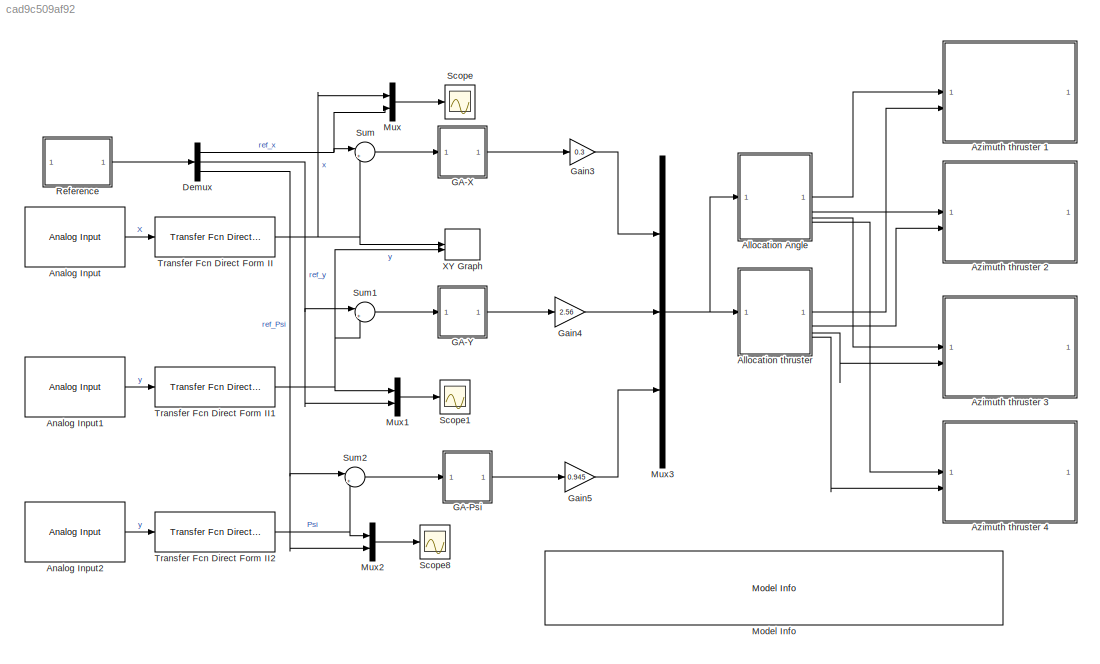
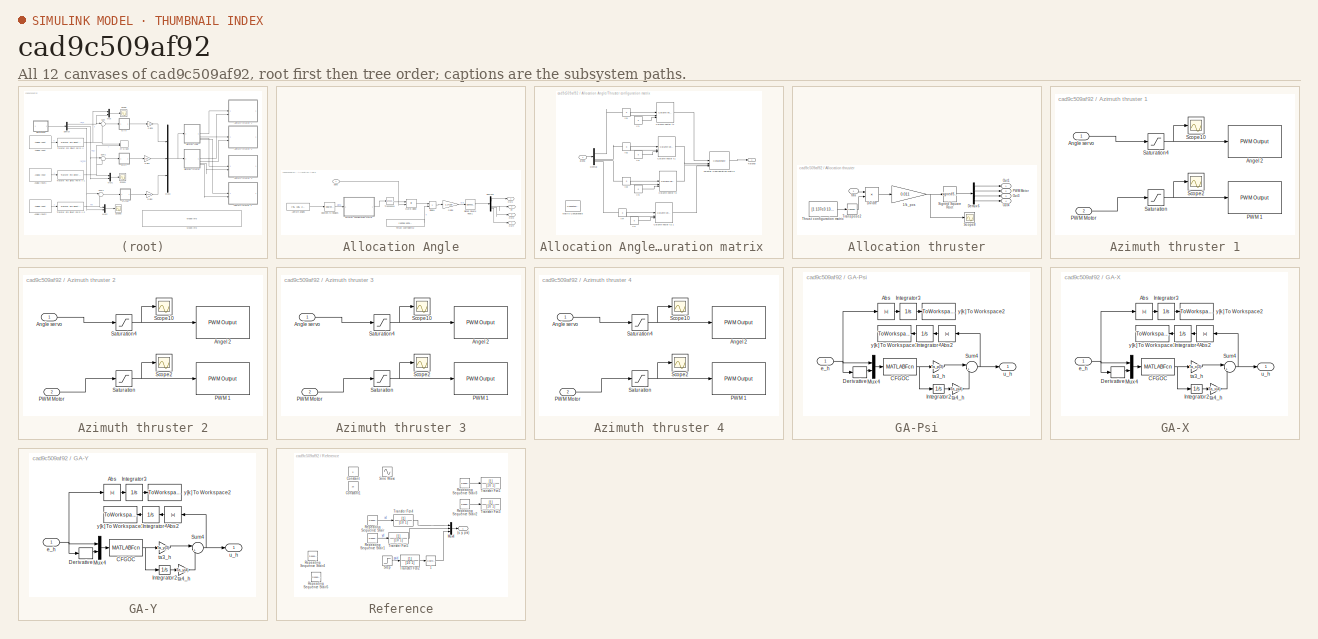
[diagram: thumbnail index - all 12 canvases of the model, root first then tree order]
MODEL slx_cad9c509af92
KIND model
CONFIG AbsTol = auto
CONFIG EnableMultiTasking = on
CONFIG FixedStep = auto
CONFIG MaxStep = auto
CONFIG MinStep = auto
CONFIG RelTol = 1e-3
CONFIG SampleTimeConstraint = Unconstrained
CONFIG SolverName = FixedStepAuto
CONFIG StartTime = 0.0
CONFIG StopTime = 400
BLOCK [SubSystem] Allocation Angle
BLOCK [Inport] Allocation Angle/Alpha
BLOCK [Constant] Allocation Angle/Azimuth angles
  Value = [45, 135, 225, 315]
BLOCK [Reference] Allocation Angle/Degrees to Radians  REF=simulink_extras/Transformations/Degrees to
Radians
  SourceBlock = simulink_extras/Transformations/Degrees to\nRadians
  SourceType = DegreesToRadians
BLOCK [Demux] Allocation Angle/Demux6
  DisplayOption = none
BLOCK [Product] Allocation Angle/Divide1
  Inputs = */
BLOCK [Gain] Allocation Angle/Gain6
  Gain = 1.1*100
  OutDataTypeStr = Inherit: Same as input
  ParamDataTypeStr = Inherit: Same as input
  SaturateOnIntegerOverflow = on
BLOCK [Product] Allocation Angle/Matrix Divide
  Inputs = **
  Multiplication = Matrix(*)
BLOCK [Outport] Allocation Angle/Out1
BLOCK [Outport] Allocation Angle/Out3
  Port = 3
BLOCK [Outport] Allocation Angle/Out4
  Port = 4
BLOCK [Sqrt] Allocation Angle/Signed Square Root1
  Operator = signedSqrt
BLOCK [Constant] Allocation Angle/Thrust coefficients2
  Value = [137e3 137e3 137e3 137e3]
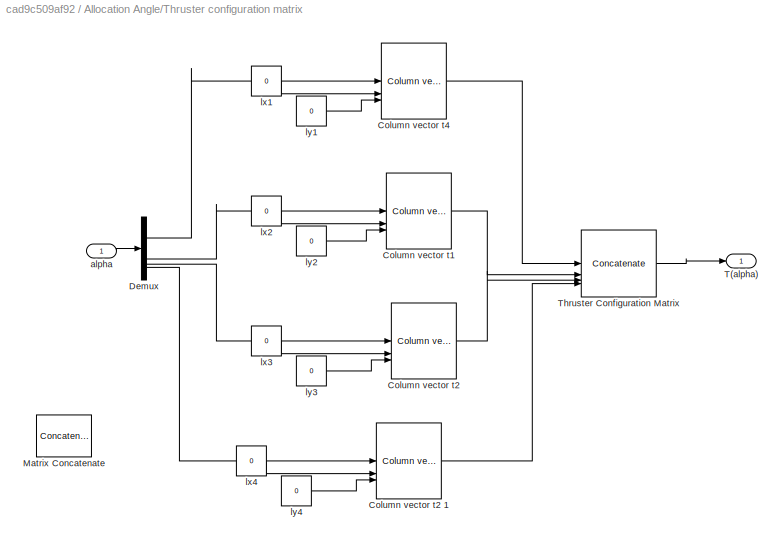
BLOCK [SubSystem] Allocation Angle/Thruster configuration matrix  
  AncestorBlock = mssSimulink/Modelling/Propulsion/Actuator Configuration/Thruster configuration matrix
BLOCK [Reference] Allocation Angle/Thruster configuration matrix  /Column vector t1   REF=mssSimulink/Modelling/Propulsion/Actuator Configuration/Column vector t
  SourceBlock = mssSimulink/Modelling/Propulsion/Actuator Configuration/Column vector t
  SourceType = SubSystem
BLOCK [Reference] Allocation Angle/Thruster configuration matrix  /Column vector t2   REF=mssSimulink/Modelling/Propulsion/Actuator Configuration/Column vector t
  SourceBlock = mssSimulink/Modelling/Propulsion/Actuator Configuration/Column vector t
  SourceType = SubSystem
BLOCK [Reference] Allocation Angle/Thruster configuration matrix  /Column vector t2 1  REF=mssSimulink/Modelling/Propulsion/Actuator Configuration/Column vector t
  SourceBlock = mssSimulink/Modelling/Propulsion/Actuator Configuration/Column vector t
  SourceType = SubSystem
BLOCK [Reference] Allocation Angle/Thruster configuration matrix  /Column vector t4   REF=mssSimulink/Modelling/Propulsion/Actuator Configuration/Column vector t
  SourceBlock = mssSimulink/Modelling/Propulsion/Actuator Configuration/Column vector t
  SourceType = SubSystem
BLOCK [Demux] Allocation Angle/Thruster configuration matrix  /Demux
  DisplayOption = none
BLOCK [Concatenate] Allocation Angle/Thruster configuration matrix  /Matrix Concatenate
  ConcatenateDimension = 4
  Mode = Multidimensional array
  NumInputs = 1
BLOCK [Outport] Allocation Angle/Thruster configuration matrix  /T(alpha)
  VectorParamsAs1DForOutWhenUnconnected = off
BLOCK [Concatenate] Allocation Angle/Thruster configuration matrix  /Thruster Configuration Matrix
  ConcatenateDimension = 2
  Mode = Multidimensional array
  NumInputs = 4
BLOCK [Inport] Allocation Angle/Thruster configuration matrix  /alpha
BLOCK [Constant] Allocation Angle/Thruster configuration matrix  /lx1
  Value = 0
BLOCK [Constant] Allocation Angle/Thruster configuration matrix  /lx2
  Value = 0
BLOCK [Constant] Allocation Angle/Thruster configuration matrix  /lx3
  Value = 0
BLOCK [Constant] Allocation Angle/Thruster configuration matrix  /lx4
  Value = 0
BLOCK [Constant] Allocation Angle/Thruster configuration matrix  /ly1
  Value = 0
BLOCK [Constant] Allocation Angle/Thruster configuration matrix  /ly2
  Value = 0
BLOCK [Constant] Allocation Angle/Thruster configuration matrix  /ly3
  Value = 0
BLOCK [Constant] Allocation Angle/Thruster configuration matrix  /ly4
  Value = 0
BLOCK [Math] Allocation Angle/Transpose1
  Operator = transpose
BLOCK [Outport] Allocation Angle/inf
  Port = 2
BLOCK [SubSystem] Allocation thruster
BLOCK [Gain] Allocation thruster/1//k_pos
  Gain = 0.011
BLOCK [Demux] Allocation thruster/Demux6
  DisplayOption = none
BLOCK [Product] Allocation thruster/Divide
  Inputs = **
  Multiplication = Matrix(*)
BLOCK [Outport] Allocation thruster/Out1
BLOCK [Outport] Allocation thruster/Out3
  Port = 3
BLOCK [Outport] Allocation thruster/Out4
  Port = 4
BLOCK [Outport] Allocation thruster/PWM Motor
  Port = 2
BLOCK [Scope] Allocation thruster/Scope8
  Floating = off
  NumInputPorts = 1
  ScopeSpecificationString = Simulink.scopes.TimeScopeBlockCfg('CurrentConfiguration', extmgr.ConfigurationSet(extmgr.Configuration('Core','General UI',true),extmgr.Configuration('Core','Source UI',true),extmgr.Configuration('Sources','WiredSimulink',true,'DataLoggingVariableName','ScopeData1'),extmgr.Configuration('Visuals','Time Domain',true,'SerializedDisplays',{struct('MinYLimReal','-62329722558.90388','MaxYLimReal','2407...<+1719ch>
BLOCK [Sqrt] Allocation thruster/Signed Square Root
  Operator = signedSqrt
BLOCK [Constant] Allocation thruster/Thrust configuration matrix
  Value = [1 137e3 137e3 137e3]
BLOCK [Math] Allocation thruster/Transpose2
  Operator = transpose
BLOCK [Inport] Allocation thruster/tau
BLOCK [Reference] Analog Input  REF=mbedblockslib/Analog Input
  LibrarySourceBlock = stmnucleorootlib/Common/Analog Input
  SourceBlock = mbedblockslib/Analog Input
  SourceType = mbed.AnalogInput
BLOCK [Reference] Analog Input1  REF=mbedblockslib/Analog Input
  LibrarySourceBlock = stmnucleorootlib/Common/Analog Input
  SourceBlock = mbedblockslib/Analog Input
  SourceType = mbed.AnalogInput
BLOCK [Reference] Analog Input2  REF=mbedblockslib/Analog Input
  LibrarySourceBlock = stmnucleorootlib/Common/Analog Input
  SourceBlock = mbedblockslib/Analog Input
  SourceType = mbed.AnalogInput
BLOCK [SubSystem] Azimuth thruster 1
BLOCK [Reference] Azimuth thruster 1/Angel 2  REF=mbedblockslib/PWM Output
  LibrarySourceBlock = stmnucleorootlib/Common/PWM Output
  SourceBlock = mbedblockslib/PWM Output
  SourceType = mbed.PWMOutput
BLOCK [Inport] Azimuth thruster 1/Angle servo
BLOCK [Reference] Azimuth thruster 1/PWM 1  REF=mbedblockslib/PWM Output
  LibrarySourceBlock = stmnucleorootlib/Common/PWM Output
  SourceBlock = mbedblockslib/PWM Output
  SourceType = mbed.PWMOutput
BLOCK [Inport] Azimuth thruster 1/PWM Motor
  Port = 2
BLOCK [Saturate] Azimuth thruster 1/Saturation
  LowerLimit = -255
  UpperLimit = 255
BLOCK [Saturate] Azimuth thruster 1/Saturation4
  LowerLimit = -255
  UpperLimit = 255
BLOCK [Scope] Azimuth thruster 1/Scope10
  Floating = off
  NumInputPorts = 1
  ScopeSpecificationString = Simulink.scopes.TimeScopeBlockCfg('CurrentConfiguration', extmgr.ConfigurationSet(extmgr.Configuration('Core','General UI',true),extmgr.Configuration('Core','Source UI',true),extmgr.Configuration('Sources','WiredSimulink',true,'DataLoggingVariableName','ScopeData4'),extmgr.Configuration('Visuals','Time Domain',true,'SerializedDisplays',{struct('MinYLimReal','-7.51082','MaxYLimReal','67.5012','YLab...<+1443ch>  <repeated x4 — deduplicated; at blocks: Scope10>
BLOCK [Scope] Azimuth thruster 1/Scope2
  Floating = off
  NumInputPorts = 1
  ScopeSpecificationString = Simulink.scopes.TimeScopeBlockCfg('CurrentConfiguration', extmgr.ConfigurationSet(extmgr.Configuration('Core','General UI',true),extmgr.Configuration('Core','Source UI',true),extmgr.Configuration('Sources','WiredSimulink',true,'DataLoggingVariableName','ScopeData2'),extmgr.Configuration('Visuals','Time Domain',true,'SerializedDisplays',{struct('MinYLimReal','-7.51082','MaxYLimReal','67.5012','YLab...<+1443ch>  <repeated x4 — deduplicated; at blocks: Scope2>
BLOCK [SubSystem] Azimuth thruster 2
BLOCK [Reference] Azimuth thruster 2/Angel 2  REF=mbedblockslib/PWM Output
  LibrarySourceBlock = stmnucleorootlib/Common/PWM Output
  SourceBlock = mbedblockslib/PWM Output
  SourceType = mbed.PWMOutput
BLOCK [Inport] Azimuth thruster 2/Angle servo
BLOCK [Reference] Azimuth thruster 2/PWM 1  REF=mbedblockslib/PWM Output
  LibrarySourceBlock = stmnucleorootlib/Common/PWM Output
  SourceBlock = mbedblockslib/PWM Output
  SourceType = mbed.PWMOutput
BLOCK [Inport] Azimuth thruster 2/PWM Motor
  Port = 2
BLOCK [Saturate] Azimuth thruster 2/Saturation
  LowerLimit = -255
  UpperLimit = 255
BLOCK [Saturate] Azimuth thruster 2/Saturation4
  LowerLimit = -255
  UpperLimit = 255
BLOCK [Scope] Azimuth thruster 2/Scope10
  Floating = off
  NumInputPorts = 1
BLOCK [Scope] Azimuth thruster 2/Scope2
  Floating = off
  NumInputPorts = 1
BLOCK [SubSystem] Azimuth thruster 3
BLOCK [Reference] Azimuth thruster 3/Angel 2  REF=mbedblockslib/PWM Output
  LibrarySourceBlock = stmnucleorootlib/Common/PWM Output
  SourceBlock = mbedblockslib/PWM Output
  SourceType = mbed.PWMOutput
BLOCK [Inport] Azimuth thruster 3/Angle servo
BLOCK [Reference] Azimuth thruster 3/PWM 1  REF=mbedblockslib/PWM Output
  LibrarySourceBlock = stmnucleorootlib/Common/PWM Output
  SourceBlock = mbedblockslib/PWM Output
  SourceType = mbed.PWMOutput
BLOCK [Inport] Azimuth thruster 3/PWM Motor
  Port = 2
BLOCK [Saturate] Azimuth thruster 3/Saturation
  LowerLimit = -255
  UpperLimit = 255
BLOCK [Saturate] Azimuth thruster 3/Saturation4
  LowerLimit = -255
  UpperLimit = 255
BLOCK [Scope] Azimuth thruster 3/Scope10
  Floating = off
  NumInputPorts = 1
BLOCK [Scope] Azimuth thruster 3/Scope2
  Floating = off
  NumInputPorts = 1
BLOCK [SubSystem] Azimuth thruster 4
BLOCK [Reference] Azimuth thruster 4/Angel 2  REF=mbedblockslib/PWM Output
  LibrarySourceBlock = stmnucleorootlib/Common/PWM Output
  SourceBlock = mbedblockslib/PWM Output
  SourceType = mbed.PWMOutput
BLOCK [Inport] Azimuth thruster 4/Angle servo
BLOCK [Reference] Azimuth thruster 4/PWM 1  REF=mbedblockslib/PWM Output
  LibrarySourceBlock = stmnucleorootlib/Common/PWM Output
  SourceBlock = mbedblockslib/PWM Output
  SourceType = mbed.PWMOutput
BLOCK [Inport] Azimuth thruster 4/PWM Motor
  Port = 2
BLOCK [Saturate] Azimuth thruster 4/Saturation
  LowerLimit = -255
  UpperLimit = 255
BLOCK [Saturate] Azimuth thruster 4/Saturation4
  LowerLimit = -255
  UpperLimit = 255
BLOCK [Scope] Azimuth thruster 4/Scope10
  Floating = off
  NumInputPorts = 1
BLOCK [Scope] Azimuth thruster 4/Scope2
  Floating = off
  NumInputPorts = 1
BLOCK [Demux] Demux
  Outputs = 3
BLOCK [SubSystem] GA-Psi
BLOCK [Abs] GA-Psi/Abs
  SaturateOnIntegerOverflow = off
BLOCK [Abs] GA-Psi/Abs2
  NameLocation = top
  SaturateOnIntegerOverflow = off
BLOCK [MATLABFcn] GA-Psi/CFGOC
  MATLABFcn = TFC_xp
  OutputDimensions = 1
BLOCK [Derivative] GA-Psi/Derivative
BLOCK [Integrator] GA-Psi/Integrator2
BLOCK [Integrator] GA-Psi/Integrator3
BLOCK [Integrator] GA-Psi/Integrator4
  NameLocation = top
BLOCK [Mux] GA-Psi/Mux4
  DisplayOption = bar
  Inputs = 2
BLOCK [Sum] GA-Psi/Sum4
  InputSameDT = on
  Inputs = |++
  OutDataTypeStr = Inherit: Same as first input
  SaturateOnIntegerOverflow = on
BLOCK [Inport] GA-Psi/e_h
BLOCK [Gain] GA-Psi/ta3_h
  Gain = Ta_p(3)
BLOCK [Gain] GA-Psi/ta4_h
  Gain = Ta_p(4)
  NameLocation = top
BLOCK [Outport] GA-Psi/u_h
BLOCK [ToWorkspace] GA-Psi/y[k] To Workspace2
  MaxDataPoints = inf
  SampleTime = -1
  SaveFormat = Timeseries
  VariableName = Sysp_Out1
BLOCK [ToWorkspace] GA-Psi/y[k] To Workspace3
  MaxDataPoints = inf
  NameLocation = top
  SampleTime = -1
  SaveFormat = Timeseries
  VariableName = Sysp_Out2
BLOCK [SubSystem] GA-X
BLOCK [Abs] GA-X/Abs
  SaturateOnIntegerOverflow = off
BLOCK [Abs] GA-X/Abs2
  NameLocation = top
  SaturateOnIntegerOverflow = off
BLOCK [MATLABFcn] GA-X/CFGOC
  MATLABFcn = TFC_xx
  OutputDimensions = 1
BLOCK [Derivative] GA-X/Derivative
BLOCK [Integrator] GA-X/Integrator2
BLOCK [Integrator] GA-X/Integrator3
BLOCK [Integrator] GA-X/Integrator4
  NameLocation = top
BLOCK [Mux] GA-X/Mux4
  DisplayOption = bar
  Inputs = 2
BLOCK [Sum] GA-X/Sum4
  InputSameDT = on
  Inputs = |++
  OutDataTypeStr = Inherit: Same as first input
  SaturateOnIntegerOverflow = on
BLOCK [Inport] GA-X/e_h
BLOCK [Gain] GA-X/ta3_h
  Gain = Ta_x(3)
BLOCK [Gain] GA-X/ta4_h
  Gain = Ta_x(4)
  NameLocation = top
BLOCK [Outport] GA-X/u_h
BLOCK [ToWorkspace] GA-X/y[k] To Workspace2
  MaxDataPoints = inf
  SampleTime = -1
  SaveFormat = Timeseries
  VariableName = Sysx_Out1
BLOCK [ToWorkspace] GA-X/y[k] To Workspace3
  MaxDataPoints = inf
  NameLocation = top
  SampleTime = -1
  SaveFormat = Timeseries
  VariableName = Sysx_Out2
BLOCK [SubSystem] GA-Y
BLOCK [Abs] GA-Y/Abs
  SaturateOnIntegerOverflow = off
BLOCK [Abs] GA-Y/Abs2
  NameLocation = top
  SaturateOnIntegerOverflow = off
BLOCK [MATLABFcn] GA-Y/CFGOC
  MATLABFcn = TFC_xy
  OutputDimensions = 1
BLOCK [Derivative] GA-Y/Derivative
BLOCK [Integrator] GA-Y/Integrator2
BLOCK [Integrator] GA-Y/Integrator3
BLOCK [Integrator] GA-Y/Integrator4
  NameLocation = top
BLOCK [Mux] GA-Y/Mux4
  DisplayOption = bar
  Inputs = 2
BLOCK [Sum] GA-Y/Sum4
  InputSameDT = on
  Inputs = |++
  OutDataTypeStr = Inherit: Same as first input
  SaturateOnIntegerOverflow = on
BLOCK [Inport] GA-Y/e_h
BLOCK [Gain] GA-Y/ta3_h
  Gain = Ta_y(3)
BLOCK [Gain] GA-Y/ta4_h
  Gain = Ta_y(4)
  NameLocation = top
BLOCK [Outport] GA-Y/u_h
BLOCK [ToWorkspace] GA-Y/y[k] To Workspace2
  MaxDataPoints = inf
  SampleTime = -1
  SaveFormat = Timeseries
  VariableName = Sysy_Out1
BLOCK [ToWorkspace] GA-Y/y[k] To Workspace3
  MaxDataPoints = inf
  NameLocation = top
  SampleTime = -1
  SaveFormat = Timeseries
  VariableName = Sysy_Out2
BLOCK [Gain] Gain3
  Gain = 0.3
BLOCK [Gain] Gain4
  Gain = 2.56
BLOCK [Gain] Gain5
  Gain = 0.945
BLOCK [Reference] Model Info  REF=simulink/Model-Wide
Utilities/Model Info
  SourceBlock = simulink/Model-Wide\nUtilities/Model Info
  SourceType = CMBlock
BLOCK [Mux] Mux
  DisplayOption = bar
  Inputs = 2
BLOCK [Mux] Mux1
  DisplayOption = bar
  Inputs = 2
BLOCK [Mux] Mux2
  DisplayOption = bar
  Inputs = 2
BLOCK [Mux] Mux3
  DisplayOption = bar
  Inputs = 3
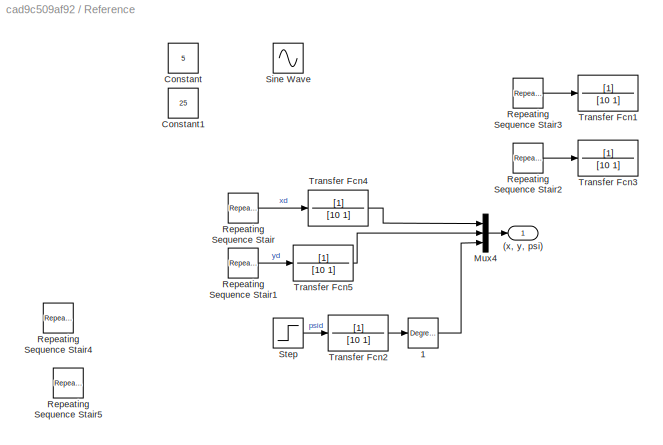
BLOCK [SubSystem] Reference
BLOCK [Reference] Reference/     1  REF=simulink_extras/Transformations/Degrees to
Radians
  SourceBlock = simulink_extras/Transformations/Degrees to\nRadians
  SourceType = DegreesToRadians
BLOCK [Outport] Reference/(x, y, psi)
BLOCK [Constant] Reference/Constant
  Value = 5
BLOCK [Constant] Reference/Constant1
  Value = 25
BLOCK [Mux] Reference/Mux4
  DisplayOption = bar
  Inputs = 3
BLOCK [Reference] Reference/Repeating Sequence Stair  REF=simulink/Sources/Repeating
Sequence
Stair
  SourceBlock = simulink/Sources/Repeating\nSequence\nStair
  SourceType = Repeating Sequence Stair
BLOCK [Reference] Reference/Repeating Sequence Stair1  REF=simulink/Sources/Repeating
Sequence
Stair
  SourceBlock = simulink/Sources/Repeating\nSequence\nStair
  SourceType = Repeating Sequence Stair
BLOCK [Reference] Reference/Repeating Sequence Stair2  REF=simulink/Sources/Repeating
Sequence
Stair
  SourceBlock = simulink/Sources/Repeating\nSequence\nStair
  SourceType = Repeating Sequence Stair
BLOCK [Reference] Reference/Repeating Sequence Stair3  REF=simulink/Sources/Repeating
Sequence
Stair
  SourceBlock = simulink/Sources/Repeating\nSequence\nStair
  SourceType = Repeating Sequence Stair
BLOCK [Reference] Reference/Repeating Sequence Stair4  REF=simulink/Sources/Repeating
Sequence
Stair
  SourceBlock = simulink/Sources/Repeating\nSequence\nStair
  SourceType = Repeating Sequence Stair
BLOCK [Reference] Reference/Repeating Sequence Stair5  REF=simulink/Sources/Repeating
Sequence
Stair
  SourceBlock = simulink/Sources/Repeating\nSequence\nStair
  SourceType = Repeating Sequence Stair
BLOCK [Sin] Reference/Sine Wave
  Frequency = 4
  SampleTime = 0
BLOCK [Step] Reference/Step
  After = 20
  SampleTime = 0
  Time = 0
BLOCK [TransferFcn] Reference/Transfer Fcn1
  Denominator = [10 1]
BLOCK [TransferFcn] Reference/Transfer Fcn2
  Denominator = [10 1]
BLOCK [TransferFcn] Reference/Transfer Fcn3
  Denominator = [10 1]
BLOCK [TransferFcn] Reference/Transfer Fcn4
  Denominator = [10 1]
BLOCK [TransferFcn] Reference/Transfer Fcn5
  Denominator = [10 1]
BLOCK [Scope] Scope
  Floating = off
  NumInputPorts = 1
  ScopeSpecificationString = Simulink.scopes.TimeScopeBlockCfg('CurrentConfiguration', extmgr.ConfigurationSet(extmgr.Configuration('Core','General UI',true,'FigureColor',[1 1 1]),extmgr.Configuration('Core','Source UI',true),extmgr.Configuration('Sources','WiredSimulink',true,'DataLogging',true),extmgr.Configuration('Visuals','Time Domain',true,'SerializedDisplays',{struct('MinYLimReal','0','MaxYLimReal','0.9','YLabelReal','...<+1474ch>
BLOCK [Scope] Scope1
  Floating = off
  NumInputPorts = 1
  ScopeSpecificationString = Simulink.scopes.TimeScopeBlockCfg('CurrentConfiguration', extmgr.ConfigurationSet(extmgr.Configuration('Core','General UI',true),extmgr.Configuration('Core','Source UI',true),extmgr.Configuration('Sources','WiredSimulink',true,'DataLoggingVariableName','ScopeData1','SampleTime','0.1'),extmgr.Configuration('Visuals','Time Domain',true,'SerializedDisplays',{struct('MinYLimReal','0.0371','MaxYLimReal...<+1498ch>
BLOCK [Scope] Scope8
  Floating = off
  NumInputPorts = 1
  ScopeSpecificationString = Simulink.scopes.TimeScopeBlockCfg('CurrentConfiguration', extmgr.ConfigurationSet(extmgr.Configuration('Core','General UI',true),extmgr.Configuration('Core','Source UI',true),extmgr.Configuration('Sources','WiredSimulink',true,'DataLoggingVariableName','ScopeData2','SampleTime','0.1'),extmgr.Configuration('Visuals','Time Domain',true,'SerializedDisplays',{struct('MinYLimReal','0.0371','MaxYLimReal...<+1498ch>
BLOCK [Sum] Sum
  Inputs = |+-
BLOCK [Sum] Sum1
  Inputs = |+-
BLOCK [Sum] Sum2
  Inputs = |+-
BLOCK [Reference] Transfer Fcn Direct Form II  REF=simulink/Additional Math
& Discrete/Additional
Discrete/Transfer Fcn
Direct Form II
  SourceBlock = simulink/Additional Math\n& Discrete/Additional\nDiscrete/Transfer Fcn\nDirect Form II
  SourceType = Transfer Fcn Direct Form II
BLOCK [Reference] Transfer Fcn Direct Form II1  REF=simulink/Additional Math
& Discrete/Additional
Discrete/Transfer Fcn
Direct Form II
  SourceBlock = simulink/Additional Math\n& Discrete/Additional\nDiscrete/Transfer Fcn\nDirect Form II
  SourceType = Transfer Fcn Direct Form II
BLOCK [Reference] Transfer Fcn Direct Form II2  REF=simulink/Additional Math
& Discrete/Additional
Discrete/Transfer Fcn
Direct Form II
  SourceBlock = simulink/Additional Math\n& Discrete/Additional\nDiscrete/Transfer Fcn\nDirect Form II
  SourceType = Transfer Fcn Direct Form II
BLOCK [Record] XY Graph
  CompatibilityTag = XY
  FileSettingsInternal = {"entries":[{"content":{"excelSettings":{"content":{},"type":"Streamout.ExcelSettings"}},"type":"Streamout.FileSettingStorage","uuid":""}],"packageUris":["http:\/\/schema.mathworks.com\/mf0\/streamout_blocks\/R2020a"],"version":"1.0"}
  Layout = [1 1]
  SignalsInternal = {"entries":[{"content":{"signals":[{"content":{"blockPath":[],"dimensions":[1],"domain":"","lineColor":"#a2142f","plots":[1],"port":1,"signalID":71,"signalName":"Gain2"},"type":"RecordBlkView.Signal","uuid":""},{"content":{"blockPath":[],"dimensions":[1],"domain":"","lineColor":"#139fff","plots":[1],"port":2,"signalID":74,"signalName":"y"},"type":"RecordBlkView.Signal","uuid":""}]},"type":"RecordB...<+128ch>
  VisualizationBindings = {"xyplotplugin":{"info":[{"series":[{"bindingParametersList":[{"parameter":"X-Axis","signalID":71,"signalName":"Gain2"},{"parameter":"Y-Axis","signalID":74,"signalName":"y"}],"seriesID":16081}],"subplotID":1}]}}
LINE Allocation Angle/Alpha:1 -> Allocation Angle/Matrix Divide:2
LINE Allocation Angle/Azimuth angles:1 -> Allocation Angle/Degrees to Radians:1
LINE Allocation Angle/Degrees to Radians:1 -> Allocation Angle/Thruster configuration matrix  :1
LINE Allocation Angle/Demux6:1 -> Allocation Angle/Out1:1
LINE Allocation Angle/Demux6:2 -> Allocation Angle/inf:1
LINE Allocation Angle/Demux6:3 -> Allocation Angle/Out3:1
LINE Allocation Angle/Demux6:4 -> Allocation Angle/Out4:1
LINE Allocation Angle/Divide1:1 -> Allocation Angle/Gain6:1
LINE Allocation Angle/Gain6:1 -> Allocation Angle/Signed Square Root1:1
LINE Allocation Angle/Matrix Divide:1 -> Allocation Angle/Divide1:1
LINE Allocation Angle/Signed Square Root1:1 -> Allocation Angle/Demux6:1
LINE Allocation Angle/Thrust coefficients2:1 -> Allocation Angle/Divide1:2
LINE Allocation Angle/Thruster configuration matrix  :1 -> Allocation Angle/Transpose1:1
LINE Allocation Angle/Transpose1:1 -> Allocation Angle/Matrix Divide:1
LINE Allocation Angle:1 -> Azimuth thruster 1:1
LINE Allocation Angle:2 -> Azimuth thruster 2:1
LINE Allocation Angle:3 -> Azimuth thruster 3:1
LINE Allocation Angle:4 -> Azimuth thruster 4:1
NET Allocation thruster/1//k_pos:1 -> Allocation thruster/Scope8:1, Allocation thruster/Signed Square Root:1
LINE Allocation thruster/Demux6:1 -> Allocation thruster/Out1:1
LINE Allocation thruster/Demux6:2 -> Allocation thruster/PWM Motor:1
LINE Allocation thruster/Demux6:3 -> Allocation thruster/Out3:1
LINE Allocation thruster/Demux6:4 -> Allocation thruster/Out4:1
LINE Allocation thruster/Divide:1 -> Allocation thruster/1//k_pos:1
LINE Allocation thruster/Signed Square Root:1 -> Allocation thruster/Demux6:1
LINE Allocation thruster/Thrust configuration matrix:1 -> Allocation thruster/Transpose2:1
LINE Allocation thruster/Transpose2:1 -> Allocation thruster/Divide:2
LINE Allocation thruster/tau:1 -> Allocation thruster/Divide:1
LINE Allocation thruster:1 -> Azimuth thruster 1:2
LINE Allocation thruster:2 -> Azimuth thruster 2:2
LINE Allocation thruster:3 -> Azimuth thruster 3:2
LINE Allocation thruster:4 -> Azimuth thruster 4:2
LINE Analog Input1:1 -> Transfer Fcn Direct Form II1:1
LINE Analog Input2:1 -> Transfer Fcn Direct Form II2:1
LINE Analog Input:1 -> Transfer Fcn Direct Form II:1
LINE Azimuth thruster 1/Angle servo:1 -> Azimuth thruster 1/Saturation4:1
LINE Azimuth thruster 1/PWM Motor:1 -> Azimuth thruster 1/Saturation:1
NET Azimuth thruster 1/Saturation4:1 -> Azimuth thruster 1/Angel 2:1, Azimuth thruster 1/Scope10:1
NET Azimuth thruster 1/Saturation:1 -> Azimuth thruster 1/PWM 1:1, Azimuth thruster 1/Scope2:1
LINE Azimuth thruster 2/Angle servo:1 -> Azimuth thruster 2/Saturation4:1
LINE Azimuth thruster 2/PWM Motor:1 -> Azimuth thruster 2/Saturation:1
NET Azimuth thruster 2/Saturation4:1 -> Azimuth thruster 2/Angel 2:1, Azimuth thruster 2/Scope10:1
NET Azimuth thruster 2/Saturation:1 -> Azimuth thruster 2/PWM 1:1, Azimuth thruster 2/Scope2:1
LINE Azimuth thruster 3/Angle servo:1 -> Azimuth thruster 3/Saturation4:1
LINE Azimuth thruster 3/PWM Motor:1 -> Azimuth thruster 3/Saturation:1
NET Azimuth thruster 3/Saturation4:1 -> Azimuth thruster 3/Angel 2:1, Azimuth thruster 3/Scope10:1
NET Azimuth thruster 3/Saturation:1 -> Azimuth thruster 3/PWM 1:1, Azimuth thruster 3/Scope2:1
LINE Azimuth thruster 4/Angle servo:1 -> Azimuth thruster 4/Saturation4:1
LINE Azimuth thruster 4/PWM Motor:1 -> Azimuth thruster 4/Saturation:1
NET Azimuth thruster 4/Saturation4:1 -> Azimuth thruster 4/Angel 2:1, Azimuth thruster 4/Scope10:1
NET Azimuth thruster 4/Saturation:1 -> Azimuth thruster 4/PWM 1:1, Azimuth thruster 4/Scope2:1
NET Demux:1 -> Mux:2, Sum:1
NET Demux:2 -> Mux1:2, Sum1:1
NET Demux:3 -> Mux2:2, Sum2:1
LINE GA-Psi/Abs2:1 -> GA-Psi/Integrator4:1
LINE GA-Psi/Abs:1 -> GA-Psi/Integrator3:1
NET GA-Psi/CFGOC:1 -> GA-Psi/Integrator2:1, GA-Psi/ta3_h:1
LINE GA-Psi/Derivative:1 -> GA-Psi/Mux4:2
LINE GA-Psi/Integrator2:1 -> GA-Psi/ta4_h:1
LINE GA-Psi/Integrator3:1 -> GA-Psi/y[k] To Workspace2:1
LINE GA-Psi/Integrator4:1 -> GA-Psi/y[k] To Workspace3:1
LINE GA-Psi/Mux4:1 -> GA-Psi/CFGOC:1
NET GA-Psi/Sum4:1 -> GA-Psi/Abs2:1, GA-Psi/u_h:1
NET GA-Psi/e_h:1 -> GA-Psi/Abs:1, GA-Psi/Derivative:1, GA-Psi/Mux4:1
LINE GA-Psi/ta3_h:1 -> GA-Psi/Sum4:1
LINE GA-Psi/ta4_h:1 -> GA-Psi/Sum4:2
LINE GA-Psi:1 -> Gain5:1
LINE GA-X/Abs2:1 -> GA-X/Integrator4:1
LINE GA-X/Abs:1 -> GA-X/Integrator3:1
NET GA-X/CFGOC:1 -> GA-X/Integrator2:1, GA-X/ta3_h:1
LINE GA-X/Derivative:1 -> GA-X/Mux4:2
LINE GA-X/Integrator2:1 -> GA-X/ta4_h:1
LINE GA-X/Integrator3:1 -> GA-X/y[k] To Workspace2:1
LINE GA-X/Integrator4:1 -> GA-X/y[k] To Workspace3:1
LINE GA-X/Mux4:1 -> GA-X/CFGOC:1
NET GA-X/Sum4:1 -> GA-X/Abs2:1, GA-X/u_h:1
NET GA-X/e_h:1 -> GA-X/Abs:1, GA-X/Derivative:1, GA-X/Mux4:1
LINE GA-X/ta3_h:1 -> GA-X/Sum4:1
LINE GA-X/ta4_h:1 -> GA-X/Sum4:2
LINE GA-X:1 -> Gain3:1
LINE GA-Y/Abs2:1 -> GA-Y/Integrator4:1
LINE GA-Y/Abs:1 -> GA-Y/Integrator3:1
NET GA-Y/CFGOC:1 -> GA-Y/Integrator2:1, GA-Y/ta3_h:1
LINE GA-Y/Derivative:1 -> GA-Y/Mux4:2
LINE GA-Y/Integrator2:1 -> GA-Y/ta4_h:1
LINE GA-Y/Integrator3:1 -> GA-Y/y[k] To Workspace2:1
LINE GA-Y/Integrator4:1 -> GA-Y/y[k] To Workspace3:1
LINE GA-Y/Mux4:1 -> GA-Y/CFGOC:1
NET GA-Y/Sum4:1 -> GA-Y/Abs2:1, GA-Y/u_h:1
NET GA-Y/e_h:1 -> GA-Y/Abs:1, GA-Y/Derivative:1, GA-Y/Mux4:1
LINE GA-Y/ta3_h:1 -> GA-Y/Sum4:1
LINE GA-Y/ta4_h:1 -> GA-Y/Sum4:2
LINE GA-Y:1 -> Gain4:1
LINE Gain3:1 -> Mux3:1
LINE Gain4:1 -> Mux3:2
LINE Gain5:1 -> Mux3:3
LINE Mux1:1 -> Scope1:1
LINE Mux2:1 -> Scope8:1
NET Mux3:1 -> Allocation Angle:1, Allocation thruster:1
LINE Mux:1 -> Scope:1
LINE Reference/     1:1 -> Reference/Mux4:3
LINE Reference/Mux4:1 -> Reference/(x, y, psi):1
LINE Reference/Repeating Sequence Stair1:1 -> Reference/Transfer Fcn5:1
LINE Reference/Repeating Sequence Stair2:1 -> Reference/Transfer Fcn3:1
LINE Reference/Repeating Sequence Stair3:1 -> Reference/Transfer Fcn1:1
LINE Reference/Repeating Sequence Stair:1 -> Reference/Transfer Fcn4:1
LINE Reference/Step:1 -> Reference/Transfer Fcn2:1
LINE Reference/Transfer Fcn2:1 -> Reference/     1:1
LINE Reference/Transfer Fcn4:1 -> Reference/Mux4:1
LINE Reference/Transfer Fcn5:1 -> Reference/Mux4:2
LINE Reference:1 -> Demux:1
LINE Sum1:1 -> GA-Y:1
LINE Sum2:1 -> GA-Psi:1
LINE Sum:1 -> GA-X:1
NET Transfer Fcn Direct Form II1:1 -> Mux1:1, Sum1:2, XY Graph:2
NET Transfer Fcn Direct Form II2:1 -> Mux2:1, Sum2:2
NET Transfer Fcn Direct Form II:1 -> Mux:1, Sum:2, XY Graph:1
note: NET lines group one-source signal fan-out (src -> all destinations, sorted); 1:1 wires keep LINE
